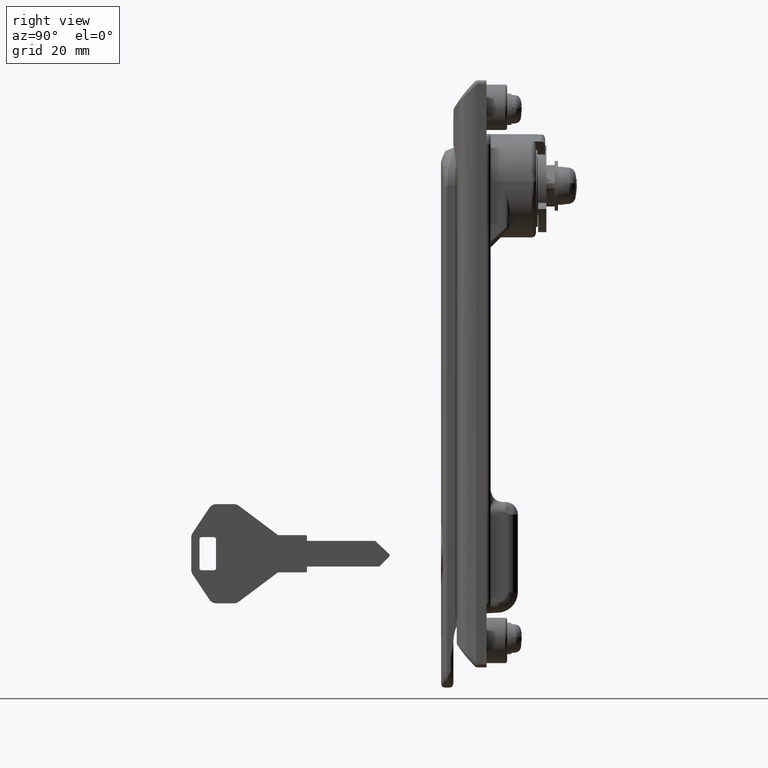
[diagram: clean part render]
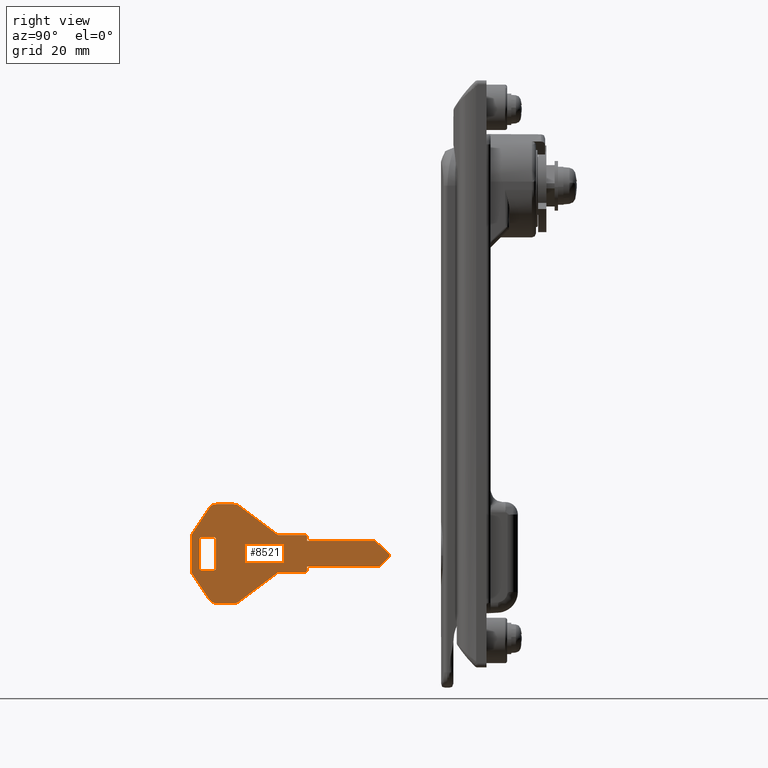
[diagram: same view with one face highlighted and labeled with its STEP entity id]
A machine part, right view. The second image highlights one B-rep face of the part: STEP entity #8521.
In plain terms, the highlighted face is a freeform B-spline surface patch.
Its self-contained STEP definition (entity closure, byte-faithful):
#8180=CARTESIAN_POINT('',(-83.309767655400037,-0.949999999999858,-75.801200046531150));
#8181=CARTESIAN_POINT('',(-30.514632893832090,-0.949999999999858,-75.801200046531150));
#8182=CARTESIAN_POINT('',(-83.309767655400037,-0.949999999999858,-102.198800597228100));
#8183=CARTESIAN_POINT('',(-30.514632893832090,-0.949999999999858,-102.198800597228100));
#8184=B_SPLINE_SURFACE_WITH_KNOTS('',1,1,((#8180,#8182),(#8181,#8183)),.UNSPECIFIED.,.F.,.F.,.U.,(2,2),(2,2),(0.0,52.795134761567937),(0.0,26.397600550696961),.UNSPECIFIED.);
#8185=CARTESIAN_POINT('',(-69.378840002722399,-0.949999999999895,-77.400000000014785));
#8186=VERTEX_POINT('',#8185);
#8187=CARTESIAN_POINT('',(-59.912173336056000,-0.949999999999895,-84.500000000014609));
#8188=VERTEX_POINT('',#8187);
#8189=CARTESIAN_POINT('',(-69.378840002722399,-0.949999999999895,-77.400000000014785));
#8190=CARTESIAN_POINT('',(-59.912173336056000,-0.949999999999895,-84.500000000014609));
#8191=QUASI_UNIFORM_CURVE('',1,(#8189,#8190),.UNSPECIFIED.,.F.,.U.);
#8192=EDGE_CURVE('',#8186,#8188,#8191,.T.);
#8193=ORIENTED_EDGE('',*,*,#8192,.F.);
#8194=CARTESIAN_POINT('',(-70.578840002722501,-0.949999999999895,-77.000000000014495));
#8195=VERTEX_POINT('',#8194);
#8196=CARTESIAN_POINT('',(-69.378840002722399,-0.949999999999895,-77.400000000014785));
#8197=CARTESIAN_POINT('',(-69.912173336055744,-0.949999999999895,-77.000000000014793));
#8198=CARTESIAN_POINT('',(-70.578840002722501,-0.949999999999895,-77.000000000014495));
#8206=(BOUNDED_CURVE()B_SPLINE_CURVE(2,(#8196,#8197,#8198),.UNSPECIFIED.,.F.,.U.)CURVE()GEOMETRIC_REPRESENTATION_ITEM()QUASI_UNIFORM_CURVE()RATIONAL_B_SPLINE_CURVE((1.0,0.948683298050514,1.0))REPRESENTATION_ITEM(''));
#8207=EDGE_CURVE('',#8186,#8195,#8206,.T.);
#8208=ORIENTED_EDGE('',*,*,#8207,.T.);
#8209=CARTESIAN_POINT('',(-74.841805819079781,-0.949999999999895,-77.000000000014793));
#8210=VERTEX_POINT('',#8209);
#8211=CARTESIAN_POINT('',(-74.841805819079781,-0.949999999999895,-77.000000000014793));
#8212=CARTESIAN_POINT('',(-70.578840002722501,-0.949999999999895,-77.000000000014495));
#8213=QUASI_UNIFORM_CURVE('',1,(#8211,#8212),.UNSPECIFIED.,.F.,.U.);
#8214=EDGE_CURVE('',#8210,#8195,#8213,.T.);
#8215=ORIENTED_EDGE('',*,*,#8214,.F.);
#8216=CARTESIAN_POINT('',(-76.505906407755603,-0.949999999999895,-77.890599607564099));
#8217=VERTEX_POINT('',#8216);
#8218=CARTESIAN_POINT('',(-74.841805819079781,-0.949999999999895,-77.000000000014793));
#8219=CARTESIAN_POINT('',(-75.912173336055702,-0.949999999999895,-77.000000000014793));
#8220=CARTESIAN_POINT('',(-76.505906407755418,-0.949999999999895,-77.890599607564241));
#8228=(BOUNDED_CURVE()B_SPLINE_CURVE(2,(#8218,#8219,#8220),.UNSPECIFIED.,.F.,.U.)CURVE()GEOMETRIC_REPRESENTATION_ITEM()QUASI_UNIFORM_CURVE()RATIONAL_B_SPLINE_CURVE((1.0,0.881674598767958,1.0))REPRESENTATION_ITEM(''));
#8229=EDGE_CURVE('',#8210,#8217,#8228,.T.);
#8230=ORIENTED_EDGE('',*,*,#8229,.T.);
#8231=CARTESIAN_POINT('',(-80.576273924731495,-0.949999999999895,-83.996150883028307));
#8232=VERTEX_POINT('',#8231);
#8233=CARTESIAN_POINT('',(-80.576273924731495,-0.949999999999895,-83.996150883028307));
#8234=CARTESIAN_POINT('',(-76.505906407755603,-0.949999999999895,-77.890599607564099));
#8235=QUASI_UNIFORM_CURVE('',1,(#8233,#8234),.UNSPECIFIED.,.F.,.U.);
#8236=EDGE_CURVE('',#8232,#8217,#8235,.T.);
#8237=ORIENTED_EDGE('',*,*,#8236,.F.);
#8238=CARTESIAN_POINT('',(-80.912173336055702,-0.949999999999895,-85.105551275478717));
#8239=VERTEX_POINT('',#8238);
#8240=CARTESIAN_POINT('',(-80.576273924731524,-0.949999999999895,-83.996150883028292));
#8241=CARTESIAN_POINT('',(-80.912173336055801,-0.949999999999895,-84.500000000014751));
#8242=CARTESIAN_POINT('',(-80.912173336055801,-0.949999999999895,-85.105551275478717));
#8250=(BOUNDED_CURVE()B_SPLINE_CURVE(2,(#8240,#8241,#8242),.UNSPECIFIED.,.F.,.U.)CURVE()GEOMETRIC_REPRESENTATION_ITEM()QUASI_UNIFORM_CURVE()RATIONAL_B_SPLINE_CURVE((1.0,0.957092026489057,1.0))REPRESENTATION_ITEM(''));
#8251=EDGE_CURVE('',#8232,#8239,#8250,.T.);
#8252=ORIENTED_EDGE('',*,*,#8251,.T.);
#8253=CARTESIAN_POINT('',(-80.912173336055801,-0.949999999999895,-92.894448724550415));
#8254=VERTEX_POINT('',#8253);
#8255=CARTESIAN_POINT('',(-80.912173336055801,-0.949999999999895,-92.894448724550415));
#8256=CARTESIAN_POINT('',(-80.912173336055702,-0.949999999999895,-85.105551275478717));
#8257=QUASI_UNIFORM_CURVE('',1,(#8255,#8256),.UNSPECIFIED.,.F.,.U.);
#8258=EDGE_CURVE('',#8254,#8239,#8257,.T.);
#8259=ORIENTED_EDGE('',*,*,#8258,.F.);
#8260=CARTESIAN_POINT('',(-80.576273924731495,-0.949999999999895,-94.003849117001096));
#8261=VERTEX_POINT('',#8260);
#8262=CARTESIAN_POINT('',(-80.912173336055801,-0.949999999999895,-92.894448724550415));
#8263=CARTESIAN_POINT('',(-80.912173336055787,-0.949999999999895,-93.500000000014495));
#8264=CARTESIAN_POINT('',(-80.576273924731382,-0.949999999999895,-94.003849117001025));
#8272=(BOUNDED_CURVE()B_SPLINE_CURVE(2,(#8262,#8263,#8264),.UNSPECIFIED.,.F.,.U.)CURVE()GEOMETRIC_REPRESENTATION_ITEM()QUASI_UNIFORM_CURVE()RATIONAL_B_SPLINE_CURVE((1.0,0.957092026489040,1.0))REPRESENTATION_ITEM(''));
#8273=EDGE_CURVE('',#8254,#8261,#8272,.T.);
#8274=ORIENTED_EDGE('',*,*,#8273,.T.);
#8275=CARTESIAN_POINT('',(-76.505906407755504,-0.949999999999895,-100.109400392465200));
#8276=VERTEX_POINT('',#8275);
#8277=CARTESIAN_POINT('',(-76.505906407755504,-0.949999999999895,-100.109400392465200));
#8278=CARTESIAN_POINT('',(-80.576273924731495,-0.949999999999895,-94.003849117001096));
#8279=QUASI_UNIFORM_CURVE('',1,(#8277,#8278),.UNSPECIFIED.,.F.,.U.);
#8280=EDGE_CURVE('',#8276,#8261,#8279,.T.);
#8281=ORIENTED_EDGE('',*,*,#8280,.F.);
#8282=CARTESIAN_POINT('',(-74.841805819079994,-0.949999999999895,-101.000000000014400));
#8283=VERTEX_POINT('',#8282);
#8284=CARTESIAN_POINT('',(-76.505906407755461,-0.949999999999895,-100.109400392465200));
#8285=CARTESIAN_POINT('',(-75.912173336055872,-0.949999999999895,-101.000000000014580));
#8286=CARTESIAN_POINT('',(-74.841805819079994,-0.949999999999895,-101.000000000014690));
#8294=(BOUNDED_CURVE()B_SPLINE_CURVE(2,(#8284,#8285,#8286),.UNSPECIFIED.,.F.,.U.)CURVE()GEOMETRIC_REPRESENTATION_ITEM()QUASI_UNIFORM_CURVE()RATIONAL_B_SPLINE_CURVE((1.0,0.881674598767970,1.0))REPRESENTATION_ITEM(''));
#8295=EDGE_CURVE('',#8276,#8283,#8294,.T.);
#8296=ORIENTED_EDGE('',*,*,#8295,.T.);
#8297=CARTESIAN_POINT('',(-70.578840002722600,-0.949999999999895,-101.000000000014590));
#8298=VERTEX_POINT('',#8297);
#8299=CARTESIAN_POINT('',(-70.578840002722600,-0.949999999999895,-101.000000000014590));
#8300=CARTESIAN_POINT('',(-74.841805819079994,-0.949999999999895,-101.000000000014400));
#8301=QUASI_UNIFORM_CURVE('',1,(#8299,#8300),.UNSPECIFIED.,.F.,.U.);
#8302=EDGE_CURVE('',#8298,#8283,#8301,.T.);
#8303=ORIENTED_EDGE('',*,*,#8302,.F.);
#8304=CARTESIAN_POINT('',(-69.378840002722598,-0.949999999999895,-100.600000000014600));
#8305=VERTEX_POINT('',#8304);
#8306=CARTESIAN_POINT('',(-70.578840002722600,-0.949999999999895,-101.000000000014690));
#8307=CARTESIAN_POINT('',(-69.912173336055886,-0.949999999999895,-101.000000000014710));
#8308=CARTESIAN_POINT('',(-69.378840002722555,-0.949999999999895,-100.600000000014700));
#8316=(BOUNDED_CURVE()B_SPLINE_CURVE(2,(#8306,#8307,#8308),.UNSPECIFIED.,.F.,.U.)CURVE()GEOMETRIC_REPRESENTATION_ITEM()QUASI_UNIFORM_CURVE()RATIONAL_B_SPLINE_CURVE((1.0,0.948683298050508,1.0))REPRESENTATION_ITEM(''));
#8317=EDGE_CURVE('',#8298,#8305,#8316,.T.);
#8318=ORIENTED_EDGE('',*,*,#8317,.T.);
#8319=CARTESIAN_POINT('',(-59.912173336056000,-0.949999999999895,-93.500000000014495));
#8320=VERTEX_POINT('',#8319);
#8321=CARTESIAN_POINT('',(-59.912173336056000,-0.949999999999895,-93.500000000014495));
#8322=CARTESIAN_POINT('',(-69.378840002722598,-0.949999999999895,-100.600000000014600));
#8323=QUASI_UNIFORM_CURVE('',1,(#8321,#8322),.UNSPECIFIED.,.F.,.U.);
#8324=EDGE_CURVE('',#8320,#8305,#8323,.T.);
#8325=ORIENTED_EDGE('',*,*,#8324,.F.);
#8326=CARTESIAN_POINT('',(-53.212173336055699,-0.949999999999895,-93.500000000014694));
#8327=VERTEX_POINT('',#8326);
#8328=CARTESIAN_POINT('',(-53.212173336055699,-0.949999999999895,-93.500000000014694));
#8329=CARTESIAN_POINT('',(-59.912173336056000,-0.949999999999895,-93.500000000014495));
#8330=QUASI_UNIFORM_CURVE('',1,(#8328,#8329),.UNSPECIFIED.,.F.,.U.);
#8331=EDGE_CURVE('',#8327,#8320,#8330,.T.);
#8332=ORIENTED_EDGE('',*,*,#8331,.F.);
#8333=CARTESIAN_POINT('',(-52.912173336055993,-0.949999999999895,-93.200000000014597));
#8334=VERTEX_POINT('',#8333);
#8335=CARTESIAN_POINT('',(-53.212173336055699,-0.949999999999895,-93.500000000014694));
#8336=CARTESIAN_POINT('',(-53.087909267343740,-0.949999999999895,-93.500000000014694));
#8337=CARTESIAN_POINT('',(-53.000041301699703,-0.949999999999895,-93.412132034370629));
#8338=CARTESIAN_POINT('',(-52.912173336055652,-0.949999999999895,-93.324264068726549));
#8339=CARTESIAN_POINT('',(-52.912173336055702,-0.949999999999895,-93.200000000014597));
#8347=(BOUNDED_CURVE()B_SPLINE_CURVE(2,(#8335,#8336,#8337,#8338,#8339),.UNSPECIFIED.,.F.,.U.)B_SPLINE_CURVE_WITH_KNOTS((3,2,3),(0.0,0.500000000000000,1.0),.UNSPECIFIED.)CURVE()GEOMETRIC_REPRESENTATION_ITEM()RATIONAL_B_SPLINE_CURVE((1.0,0.923879532511256,1.0,0.923879532511256,1.0))REPRESENTATION_ITEM(''));
#8348=EDGE_CURVE('',#8327,#8334,#8347,.T.);
#8349=ORIENTED_EDGE('',*,*,#8348,.T.);
#8350=CARTESIAN_POINT('',(-52.912173336055993,-0.949999999999895,-92.100000000014603));
#8351=VERTEX_POINT('',#8350);
#8352=CARTESIAN_POINT('',(-52.912173336055993,-0.949999999999895,-92.100000000014603));
#8353=CARTESIAN_POINT('',(-52.912173336055993,-0.949999999999895,-93.200000000014597));
#8354=QUASI_UNIFORM_CURVE('',1,(#8352,#8353),.UNSPECIFIED.,.F.,.U.);
#8355=EDGE_CURVE('',#8351,#8334,#8354,.T.);
#8356=ORIENTED_EDGE('',*,*,#8355,.F.);
#8357=CARTESIAN_POINT('',(-35.412173336056000,-0.949999999999895,-92.100000000014703));
#8358=VERTEX_POINT('',#8357);
#8359=CARTESIAN_POINT('',(-35.412173336056000,-0.949999999999895,-92.100000000014703));
#8360=CARTESIAN_POINT('',(-52.912173336055993,-0.949999999999895,-92.100000000014603));
#8361=QUASI_UNIFORM_CURVE('',1,(#8359,#8360),.UNSPECIFIED.,.F.,.U.);
#8362=EDGE_CURVE('',#8358,#8351,#8361,.T.);
#8363=ORIENTED_EDGE('',*,*,#8362,.F.);
#8364=CARTESIAN_POINT('',(-33.059155011345851,-0.949999999999895,-89.754087647947898));
#8365=VERTEX_POINT('',#8364);
#8366=CARTESIAN_POINT('',(-33.059155011345851,-0.949999999999895,-89.754087647947898));
#8367=CARTESIAN_POINT('',(-35.412173336056000,-0.949999999999895,-92.100000000014703));
#8368=QUASI_UNIFORM_CURVE('',1,(#8366,#8367),.UNSPECIFIED.,.F.,.U.);
#8369=EDGE_CURVE('',#8365,#8358,#8368,.T.);
#8370=ORIENTED_EDGE('',*,*,#8369,.F.);
#8371=CARTESIAN_POINT('',(-33.070078867059649,-0.949999999999895,-89.035347598017893));
#8372=VERTEX_POINT('',#8371);
#8373=CARTESIAN_POINT('',(-33.059155011345823,-0.949999999999895,-89.754087647947927));
#8374=CARTESIAN_POINT('',(-32.909009066248295,-0.949999999999895,-89.604395134499100));
#8375=CARTESIAN_POINT('',(-32.912231075552668,-0.949999999999895,-89.392401568398867));
#8376=CARTESIAN_POINT('',(-32.915453084857027,-0.949999999999895,-89.180408002298620));
#8377=CARTESIAN_POINT('',(-33.070078867059458,-0.949999999999895,-89.035347598017694));
#8385=(BOUNDED_CURVE()B_SPLINE_CURVE(2,(#8373,#8374,#8375,#8376,#8377),.UNSPECIFIED.,.F.,.U.)B_SPLINE_CURVE_WITH_KNOTS((3,2,3),(0.0,0.500000000000000,1.0),.UNSPECIFIED.)CURVE()GEOMETRIC_REPRESENTATION_ITEM()RATIONAL_B_SPLINE_CURVE((1.0,0.920650062157970,1.0,0.920650062157970,1.0))REPRESENTATION_ITEM(''));
#8386=EDGE_CURVE('',#8365,#8372,#8385,.T.);
#8387=ORIENTED_EDGE('',*,*,#8386,.T.);
#8388=CARTESIAN_POINT('',(-36.412173336056000,-0.949999999999895,-85.900000000014600));
#8389=VERTEX_POINT('',#8388);
#8390=CARTESIAN_POINT('',(-36.412173336056000,-0.949999999999895,-85.900000000014600));
#8391=CARTESIAN_POINT('',(-33.070078867059649,-0.949999999999895,-89.035347598017893));
#8392=QUASI_UNIFORM_CURVE('',1,(#8390,#8391),.UNSPECIFIED.,.F.,.U.);
#8393=EDGE_CURVE('',#8389,#8372,#8392,.T.);
#8394=ORIENTED_EDGE('',*,*,#8393,.F.);
#8395=CARTESIAN_POINT('',(-52.912173336055993,-0.949999999999895,-85.900000000014600));
#8396=VERTEX_POINT('',#8395);
#8397=CARTESIAN_POINT('',(-52.912173336055993,-0.949999999999895,-85.900000000014600));
#8398=CARTESIAN_POINT('',(-36.412173336056000,-0.949999999999895,-85.900000000014600));
#8399=QUASI_UNIFORM_CURVE('',1,(#8397,#8398),.UNSPECIFIED.,.F.,.U.);
#8400=EDGE_CURVE('',#8396,#8389,#8399,.T.);
#8401=ORIENTED_EDGE('',*,*,#8400,.F.);
#8402=CARTESIAN_POINT('',(-52.912173336055702,-0.949999999999895,-84.800000000014691));
#8403=VERTEX_POINT('',#8402);
#8404=CARTESIAN_POINT('',(-52.912173336055702,-0.949999999999895,-84.800000000014691));
#8405=CARTESIAN_POINT('',(-52.912173336055993,-0.949999999999895,-85.900000000014600));
#8406=QUASI_UNIFORM_CURVE('',1,(#8404,#8405),.UNSPECIFIED.,.F.,.U.);
#8407=EDGE_CURVE('',#8403,#8396,#8406,.T.);
#8408=ORIENTED_EDGE('',*,*,#8407,.F.);
#8409=CARTESIAN_POINT('',(-53.212173336055898,-0.949999999999895,-84.500000000014609));
#8410=VERTEX_POINT('',#8409);
#8411=CARTESIAN_POINT('',(-52.912173336055702,-0.949999999999895,-84.800000000014691));
#8412=CARTESIAN_POINT('',(-52.912173336055702,-0.949999999999895,-84.500000000014708));
#8413=CARTESIAN_POINT('',(-53.212173336055699,-0.949999999999895,-84.500000000014708));
#8421=(BOUNDED_CURVE()B_SPLINE_CURVE(2,(#8411,#8412,#8413),.UNSPECIFIED.,.F.,.U.)CURVE()GEOMETRIC_REPRESENTATION_ITEM()QUASI_UNIFORM_CURVE()RATIONAL_B_SPLINE_CURVE((1.0,0.707106781186547,1.0))REPRESENTATION_ITEM(''));
#8422=EDGE_CURVE('',#8403,#8410,#8421,.T.);
#8423=ORIENTED_EDGE('',*,*,#8422,.T.);
#8424=CARTESIAN_POINT('',(-59.912173336056000,-0.949999999999895,-84.500000000014609));
#8425=CARTESIAN_POINT('',(-53.212173336055898,-0.949999999999895,-84.500000000014609));
#8426=QUASI_UNIFORM_CURVE('',1,(#8424,#8425),.UNSPECIFIED.,.F.,.U.);
#8427=EDGE_CURVE('',#8188,#8410,#8426,.T.);
#8428=ORIENTED_EDGE('',*,*,#8427,.F.);
#8429=EDGE_LOOP('',(#8193,#8208,#8215,#8230,#8237,#8252,#8259,#8274,#8281,#8296,#8303,#8318,#8325,#8332,#8349,#8356,#8363,#8370,#8387,#8394,#8401,#8408,#8423,#8428));
#8430=FACE_OUTER_BOUND('',#8429,.T.);
#8431=CARTESIAN_POINT('',(-75.412173336055787,-0.949999999999895,-85.000000000014793));
#8432=VERTEX_POINT('',#8431);
#8433=CARTESIAN_POINT('',(-78.412173336055702,-0.949999999999895,-85.000000000014509));
#8434=VERTEX_POINT('',#8433);
#8435=CARTESIAN_POINT('',(-75.412173336055787,-0.949999999999895,-85.000000000014793));
#8436=CARTESIAN_POINT('',(-78.412173336055702,-0.949999999999895,-85.000000000014509));
#8437=QUASI_UNIFORM_CURVE('',1,(#8435,#8436),.UNSPECIFIED.,.F.,.U.);
#8438=EDGE_CURVE('',#8432,#8434,#8437,.T.);
#8439=ORIENTED_EDGE('',*,*,#8438,.F.);
#8440=CARTESIAN_POINT('',(-74.912173336055886,-0.949999999999895,-85.500000000014609));
#8441=VERTEX_POINT('',#8440);
#8442=CARTESIAN_POINT('',(-74.912173336055787,-0.949999999999895,-85.500000000014609));
#8443=CARTESIAN_POINT('',(-74.912173336055986,-0.949999999999895,-85.000000000014793));
#8444=CARTESIAN_POINT('',(-75.412173336055787,-0.949999999999895,-85.000000000014793));
#8452=(BOUNDED_CURVE()B_SPLINE_CURVE(2,(#8442,#8443,#8444),.UNSPECIFIED.,.F.,.U.)CURVE()GEOMETRIC_REPRESENTATION_ITEM()QUASI_UNIFORM_CURVE()RATIONAL_B_SPLINE_CURVE((1.0,0.707106781186685,1.0))REPRESENTATION_ITEM(''));
#8453=EDGE_CURVE('',#8441,#8432,#8452,.T.);
#8454=ORIENTED_EDGE('',*,*,#8453,.F.);
#8455=CARTESIAN_POINT('',(-74.912173336055787,-0.949999999999895,-92.500000000014694));
#8456=VERTEX_POINT('',#8455);
#8457=CARTESIAN_POINT('',(-74.912173336055787,-0.949999999999895,-92.500000000014694));
#8458=CARTESIAN_POINT('',(-74.912173336055886,-0.949999999999895,-85.500000000014609));
#8459=QUASI_UNIFORM_CURVE('',1,(#8457,#8458),.UNSPECIFIED.,.F.,.U.);
#8460=EDGE_CURVE('',#8456,#8441,#8459,.T.);
#8461=ORIENTED_EDGE('',*,*,#8460,.F.);
#8462=CARTESIAN_POINT('',(-75.412173336055787,-0.949999999999895,-93.000000000014410));
#8463=VERTEX_POINT('',#8462);
#8464=CARTESIAN_POINT('',(-75.412173336055787,-0.949999999999895,-93.000000000014694));
#8465=CARTESIAN_POINT('',(-74.912173336055801,-0.949999999999895,-93.000000000014694));
#8466=CARTESIAN_POINT('',(-74.912173336055787,-0.949999999999895,-92.500000000014694));
#8474=(BOUNDED_CURVE()B_SPLINE_CURVE(2,(#8464,#8465,#8466),.UNSPECIFIED.,.F.,.U.)CURVE()GEOMETRIC_REPRESENTATION_ITEM()QUASI_UNIFORM_CURVE()RATIONAL_B_SPLINE_CURVE((1.0,0.707106781186548,1.0))REPRESENTATION_ITEM(''));
#8475=EDGE_CURVE('',#8463,#8456,#8474,.T.);
#8476=ORIENTED_EDGE('',*,*,#8475,.F.);
#8477=CARTESIAN_POINT('',(-78.412173336055801,-0.949999999999895,-93.000000000014694));
#8478=VERTEX_POINT('',#8477);
#8479=CARTESIAN_POINT('',(-78.412173336055801,-0.949999999999895,-93.000000000014694));
#8480=CARTESIAN_POINT('',(-75.412173336055787,-0.949999999999895,-93.000000000014410));
#8481=QUASI_UNIFORM_CURVE('',1,(#8479,#8480),.UNSPECIFIED.,.F.,.U.);
#8482=EDGE_CURVE('',#8478,#8463,#8481,.T.);
#8483=ORIENTED_EDGE('',*,*,#8482,.F.);
#8484=CARTESIAN_POINT('',(-78.912173336055702,-0.949999999999895,-92.500000000014694));
#8485=VERTEX_POINT('',#8484);
#8486=CARTESIAN_POINT('',(-78.912173336055801,-0.949999999999895,-92.500000000014694));
#8487=CARTESIAN_POINT('',(-78.912173336055787,-0.949999999999895,-93.000000000014694));
#8488=CARTESIAN_POINT('',(-78.412173336055801,-0.949999999999895,-93.000000000014694));
#8496=(BOUNDED_CURVE()B_SPLINE_CURVE(2,(#8486,#8487,#8488),.UNSPECIFIED.,.F.,.U.)CURVE()GEOMETRIC_REPRESENTATION_ITEM()QUASI_UNIFORM_CURVE()RATIONAL_B_SPLINE_CURVE((1.0,0.707106781186548,1.0))REPRESENTATION_ITEM(''));
#8497=EDGE_CURVE('',#8485,#8478,#8496,.T.);
#8498=ORIENTED_EDGE('',*,*,#8497,.F.);
#8499=CARTESIAN_POINT('',(-78.912173336055702,-0.949999999999895,-85.500000000014509));
#8500=VERTEX_POINT('',#8499);
#8501=CARTESIAN_POINT('',(-78.912173336055702,-0.949999999999895,-85.500000000014509));
#8502=CARTESIAN_POINT('',(-78.912173336055702,-0.949999999999895,-92.500000000014694));
#8503=QUASI_UNIFORM_CURVE('',1,(#8501,#8502),.UNSPECIFIED.,.F.,.U.);
#8504=EDGE_CURVE('',#8500,#8485,#8503,.T.);
#8505=ORIENTED_EDGE('',*,*,#8504,.F.);
#8506=CARTESIAN_POINT('',(-78.412173336055702,-0.949999999999895,-85.000000000014509));
#8507=CARTESIAN_POINT('',(-78.912173336055702,-0.949999999999895,-85.000000000014509));
#8508=CARTESIAN_POINT('',(-78.912173336055702,-0.949999999999895,-85.500000000014509));
#8516=(BOUNDED_CURVE()B_SPLINE_CURVE(2,(#8506,#8507,#8508),.UNSPECIFIED.,.F.,.U.)CURVE()GEOMETRIC_REPRESENTATION_ITEM()QUASI_UNIFORM_CURVE()RATIONAL_B_SPLINE_CURVE((1.0,0.707106781186548,1.0))REPRESENTATION_ITEM(''));
#8517=EDGE_CURVE('',#8434,#8500,#8516,.T.);
#8518=ORIENTED_EDGE('',*,*,#8517,.F.);
#8519=EDGE_LOOP('',(#8439,#8454,#8461,#8476,#8483,#8498,#8505,#8518));
#8520=FACE_BOUND('',#8519,.T.);
#8521=ADVANCED_FACE('',(#8430,#8520),#8184,.F.);